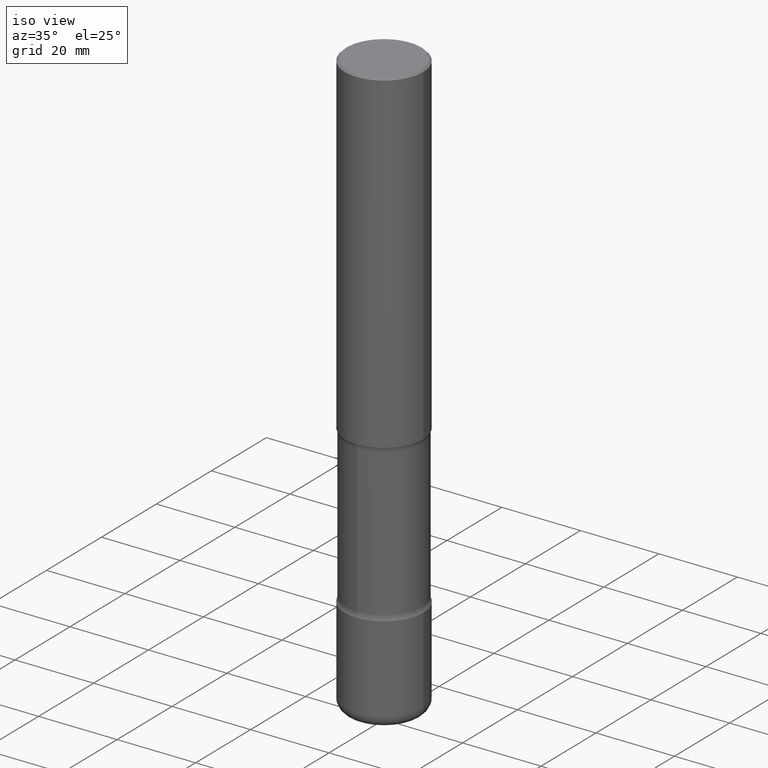
[diagram: clean part render]
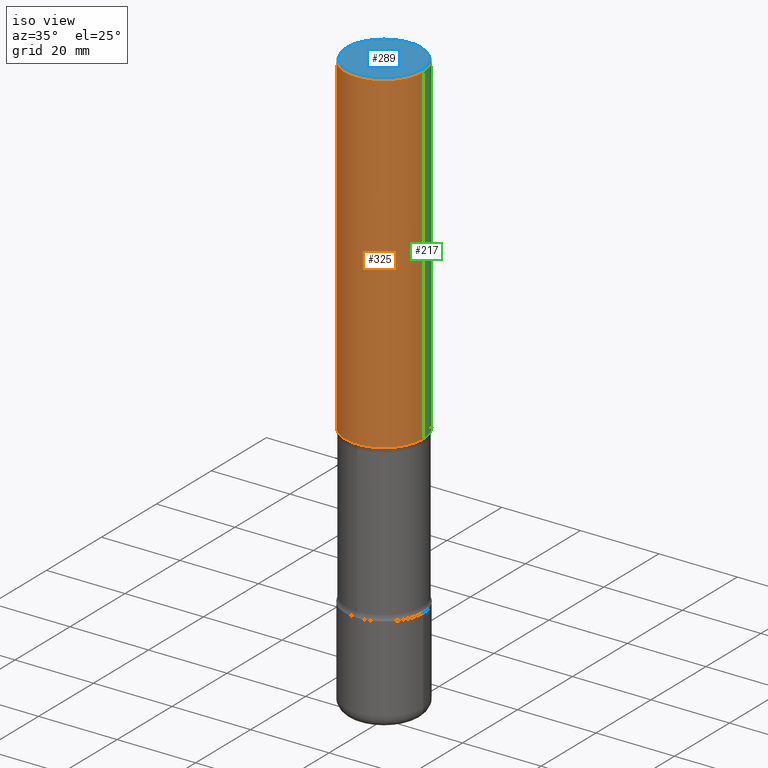
[diagram: same view with three faces highlighted in distinct colors, each labeled with its STEP entity id]
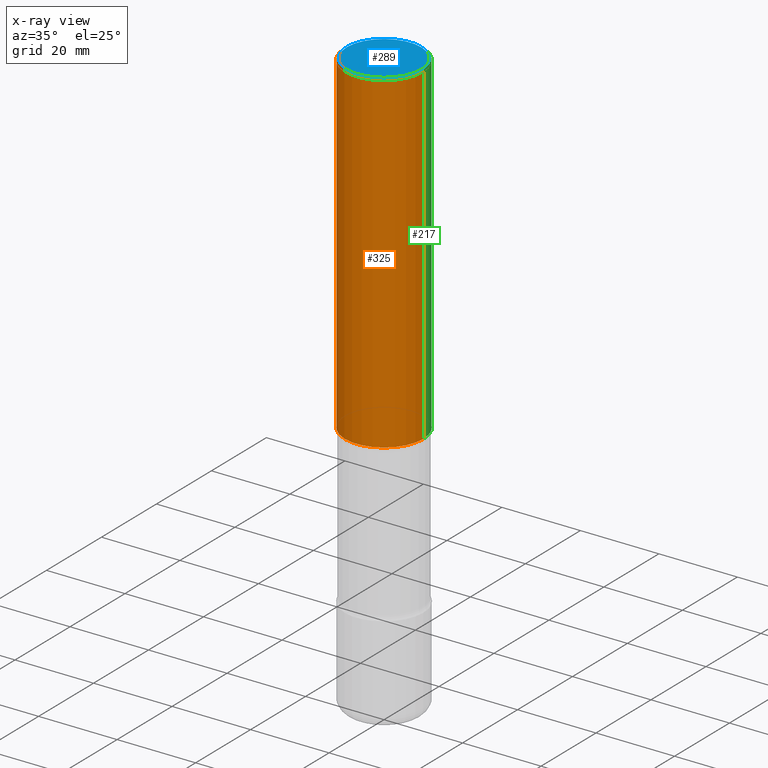
[diagram: x-ray of the same camera — body ghosted, the three highlighted faces saturated]
A machine part, iso view with three faces highlighted in distinct colors.
The next image is the same camera in x-ray (body ghosted, the three faces saturated) — at least one of them is partly hidden behind the body in this view.
Their STEP definitions:

[orange] entity #325 — the highlighted cylindrical surface (partial cylindrical patch) has radius 10 mm, axis along (-0, 0, 1).
#1 = DIRECTION ( 'NONE',  ( -2.445468806185136597E-29, 3.491481338843145583E-15, 1.000000000000000000 ) ) ;
#6 = ORIENTED_EDGE ( 'NONE', *, *, #450, .F. ) ;
#47 = FACE_OUTER_BOUND ( 'NONE', #140, .T. ) ;
#51 = LINE ( 'NONE', #226, #404 ) ;
#58 = AXIS2_PLACEMENT_3D ( 'NONE', #383, #1, #431 ) ;
#60 = EDGE_CURVE ( 'NONE', #543, #301, #268, .T. ) ;
#72 = AXIS2_PLACEMENT_3D ( 'NONE', #348, #397, #316 ) ;
#125 = VERTEX_POINT ( 'NONE', #131 ) ;
#131 = CARTESIAN_POINT ( 'NONE',  ( -0.3936999999999998279, 2.679362779428218735E-15, -0.02000000000000008715 ) ) ;
#139 = EDGE_CURVE ( 'NONE', #446, #543, #200, .T. ) ;
#140 = EDGE_LOOP ( 'NONE', ( #542, #529, #355, #6 ) ) ;
#145 = CIRCLE ( 'NONE', #451, 0.3936999999999998279 ) ;
#168 = CARTESIAN_POINT ( 'NONE',  ( 0.3937000000000002164, -1.443308555850978615E-14, -3.346399999999999597 ) ) ;
#172 = DIRECTION ( 'NONE',  ( 1.000000000000000000, -6.982962677686266711E-15, 0.000000000000000000 ) ) ;
#200 = CIRCLE ( 'NONE', #72, 0.3937000000000002164 ) ;
#206 = DIRECTION ( 'NONE',  ( -2.445468806185136877E-29, 3.491481338843145188E-15, 1.000000000000000000 ) ) ;
#212 = CYLINDRICAL_SURFACE ( 'NONE', #58, 0.3937000000000000499 ) ;
#226 = CARTESIAN_POINT ( 'NONE',  ( -0.3937000000000000499, 2.797406750687514786E-15, -1.936584745033356735E-29 ) ) ;
#252 = CARTESIAN_POINT ( 'NONE',  ( 4.890937612370294178E-31, -6.982962677686321191E-17, -0.02000000000000008715 ) ) ;
#264 = DIRECTION ( 'NONE',  ( -2.445468806185136597E-29, 3.491481338843145583E-15, 1.000000000000000000 ) ) ;
#268 = LINE ( 'NONE', #304, #398 ) ;
#301 = VERTEX_POINT ( 'NONE', #481 ) ;
#304 = CARTESIAN_POINT ( 'NONE',  ( 0.3937000000000000499, -2.749192406205083217E-15, 1.919750796630860172E-29 ) ) ;
#316 = DIRECTION ( 'NONE',  ( 1.000000000000000000, -6.982962677686269866E-15, 0.000000000000000000 ) ) ;
#325 = ADVANCED_FACE ( 'NONE', ( #47 ), #212, .T. ) ;
#348 = CARTESIAN_POINT ( 'NONE',  ( 8.183516813017940998E-29, -1.168389315230470136E-14, -3.346399999999999597 ) ) ;
#355 = ORIENTED_EDGE ( 'NONE', *, *, #60, .T. ) ;
#383 = CARTESIAN_POINT ( 'NONE',  ( 0.000000000000000000, 0.000000000000000000, 0.000000000000000000 ) ) ;
#389 = DIRECTION ( 'NONE',  ( -2.445468806185136877E-29, 3.491481338843145188E-15, 1.000000000000000000 ) ) ;
#394 = EDGE_CURVE ( 'NONE', #446, #125, #51, .T. ) ;
#397 = DIRECTION ( 'NONE',  ( -2.445468806185136597E-29, 3.491481338843145583E-15, 1.000000000000000000 ) ) ;
#398 = VECTOR ( 'NONE', #389, 39.37007874015748143 ) ;
#404 = VECTOR ( 'NONE', #206, 39.37007874015748143 ) ;
#431 = DIRECTION ( 'NONE',  ( 1.000000000000000000, -6.982962677686265922E-15, 4.876176775795935793E-29 ) ) ;
#446 = VERTEX_POINT ( 'NONE', #464 ) ;
#450 = EDGE_CURVE ( 'NONE', #125, #301, #145, .T. ) ;
#451 = AXIS2_PLACEMENT_3D ( 'NONE', #252, #264, #172 ) ;
#464 = CARTESIAN_POINT ( 'NONE',  ( -0.3937000000000002164, -3.079454638853263992E-15, -3.346399999999999597 ) ) ;
#481 = CARTESIAN_POINT ( 'NONE',  ( 0.3936999999999998279, -2.770807688499514156E-15, -0.02000000000000008715 ) ) ;
#529 = ORIENTED_EDGE ( 'NONE', *, *, #139, .T. ) ;
#542 = ORIENTED_EDGE ( 'NONE', *, *, #394, .F. ) ;
#543 = VERTEX_POINT ( 'NONE', #168 ) ;

[blue] entity #289 — the highlighted planar face has unit normal (0, -0, -1).
#43 = CARTESIAN_POINT ( 'NONE',  ( -2.087702828670439639E-46, 2.980686340760894400E-32, 8.537024980200822558E-18 ) ) ;
#94 = DIRECTION ( 'NONE',  ( -1.000000000000000000, 6.982962677686265922E-15, -4.876176775795935793E-29 ) ) ;
#102 = CARTESIAN_POINT ( 'NONE',  ( -0.3736999999999998101, 2.644447966039787875E-15, 8.537024980182450727E-18 ) ) ;
#111 = AXIS2_PLACEMENT_3D ( 'NONE', #262, #141, #315 ) ;
#129 = FACE_OUTER_BOUND ( 'NONE', #225, .T. ) ;
#141 = DIRECTION ( 'NONE',  ( -2.445468806185136597E-29, 3.491481338843145583E-15, 1.000000000000000000 ) ) ;
#143 = ORIENTED_EDGE ( 'NONE', *, *, #372, .T. ) ;
#152 = VERTEX_POINT ( 'NONE', #102 ) ;
#155 = CIRCLE ( 'NONE', #111, 0.3736999999999998101 ) ;
#183 = DIRECTION ( 'NONE',  ( 1.000000000000000000, -6.982962677686266711E-15, 4.876212485538977921E-29 ) ) ;
#223 = DIRECTION ( 'NONE',  ( -2.445468806185136597E-29, 3.491481338843145583E-15, 1.000000000000000000 ) ) ;
#225 = EDGE_LOOP ( 'NONE', ( #143, #230 ) ) ;
#230 = ORIENTED_EDGE ( 'NONE', *, *, #392, .T. ) ;
#262 = CARTESIAN_POINT ( 'NONE',  ( -2.087702828670439639E-46, 2.980686340760894400E-32, 8.537024980200822558E-18 ) ) ;
#289 = ADVANCED_FACE ( 'NONE', ( #129 ), #351, .F. ) ;
#315 = DIRECTION ( 'NONE',  ( 1.000000000000000000, -6.982962677686266711E-15, 4.876212485538977921E-29 ) ) ;
#351 = PLANE ( 'NONE',  #390 ) ;
#364 = CIRCLE ( 'NONE', #471, 0.3736999999999998101 ) ;
#372 = EDGE_CURVE ( 'NONE', #152, #537, #155, .T. ) ;
#390 = AXIS2_PLACEMENT_3D ( 'NONE', #391, #473, #94 ) ;
#391 = CARTESIAN_POINT ( 'NONE',  ( 2.609533152651356226E-15, 0.3736999999999998101, -1.300498063835582617E-15 ) ) ;
#392 = EDGE_CURVE ( 'NONE', #537, #152, #364, .T. ) ;
#471 = AXIS2_PLACEMENT_3D ( 'NONE', #43, #223, #183 ) ;
#473 = DIRECTION ( 'NONE',  ( 2.438088387897960049E-29, -3.491481338843145188E-15, -1.000000000000000000 ) ) ;
#512 = CARTESIAN_POINT ( 'NONE',  ( 0.3736999999999998101, -2.667287895133366781E-15, 8.537024980219274507E-18 ) ) ;
#537 = VERTEX_POINT ( 'NONE', #512 ) ;

[green] entity #217 — the highlighted cylindrical surface (partial cylindrical patch) has radius 10 mm, axis along (-0, 0, 1).
#9 = CIRCLE ( 'NONE', #17, 0.3937000000000002164 ) ;
#17 = AXIS2_PLACEMENT_3D ( 'NONE', #302, #83, #170 ) ;
#34 = ORIENTED_EDGE ( 'NONE', *, *, #60, .F. ) ;
#48 = CIRCLE ( 'NONE', #177, 0.3936999999999998279 ) ;
#51 = LINE ( 'NONE', #226, #404 ) ;
#52 = DIRECTION ( 'NONE',  ( -2.445468806185136597E-29, 3.491481338843145583E-15, 1.000000000000000000 ) ) ;
#60 = EDGE_CURVE ( 'NONE', #543, #301, #268, .T. ) ;
#83 = DIRECTION ( 'NONE',  ( -2.445468806185136597E-29, 3.491481338843145583E-15, 1.000000000000000000 ) ) ;
#125 = VERTEX_POINT ( 'NONE', #131 ) ;
#131 = CARTESIAN_POINT ( 'NONE',  ( -0.3936999999999998279, 2.679362779428218735E-15, -0.02000000000000008715 ) ) ;
#146 = DIRECTION ( 'NONE',  ( -2.445468806185136597E-29, 3.491481338843145583E-15, 1.000000000000000000 ) ) ;
#156 = EDGE_LOOP ( 'NONE', ( #290, #367, #498, #34 ) ) ;
#168 = CARTESIAN_POINT ( 'NONE',  ( 0.3937000000000002164, -1.443308555850978615E-14, -3.346399999999999597 ) ) ;
#170 = DIRECTION ( 'NONE',  ( 1.000000000000000000, -6.982962677686269866E-15, 0.000000000000000000 ) ) ;
#177 = AXIS2_PLACEMENT_3D ( 'NONE', #271, #52, #388 ) ;
#181 = CYLINDRICAL_SURFACE ( 'NONE', #491, 0.3937000000000000499 ) ;
#185 = FACE_OUTER_BOUND ( 'NONE', #156, .T. ) ;
#196 = EDGE_CURVE ( 'NONE', #301, #125, #48, .T. ) ;
#206 = DIRECTION ( 'NONE',  ( -2.445468806185136877E-29, 3.491481338843145188E-15, 1.000000000000000000 ) ) ;
#217 = ADVANCED_FACE ( 'NONE', ( #185 ), #181, .T. ) ;
#226 = CARTESIAN_POINT ( 'NONE',  ( -0.3937000000000000499, 2.797406750687514786E-15, -1.936584745033356735E-29 ) ) ;
#268 = LINE ( 'NONE', #304, #398 ) ;
#271 = CARTESIAN_POINT ( 'NONE',  ( 4.890937612370294178E-31, -6.982962677686321191E-17, -0.02000000000000008715 ) ) ;
#290 = ORIENTED_EDGE ( 'NONE', *, *, #296, .T. ) ;
#296 = EDGE_CURVE ( 'NONE', #543, #446, #9, .T. ) ;
#301 = VERTEX_POINT ( 'NONE', #481 ) ;
#302 = CARTESIAN_POINT ( 'NONE',  ( 8.183516813017940998E-29, -1.168389315230470136E-14, -3.346399999999999597 ) ) ;
#304 = CARTESIAN_POINT ( 'NONE',  ( 0.3937000000000000499, -2.749192406205083217E-15, 1.919750796630860172E-29 ) ) ;
#352 = DIRECTION ( 'NONE',  ( 1.000000000000000000, -6.982962677686265922E-15, 4.876176775795935793E-29 ) ) ;
#367 = ORIENTED_EDGE ( 'NONE', *, *, #394, .T. ) ;
#388 = DIRECTION ( 'NONE',  ( 1.000000000000000000, -6.982962677686266711E-15, 0.000000000000000000 ) ) ;
#389 = DIRECTION ( 'NONE',  ( -2.445468806185136877E-29, 3.491481338843145188E-15, 1.000000000000000000 ) ) ;
#394 = EDGE_CURVE ( 'NONE', #446, #125, #51, .T. ) ;
#398 = VECTOR ( 'NONE', #389, 39.37007874015748143 ) ;
#404 = VECTOR ( 'NONE', #206, 39.37007874015748143 ) ;
#446 = VERTEX_POINT ( 'NONE', #464 ) ;
#464 = CARTESIAN_POINT ( 'NONE',  ( -0.3937000000000002164, -3.079454638853263992E-15, -3.346399999999999597 ) ) ;
#481 = CARTESIAN_POINT ( 'NONE',  ( 0.3936999999999998279, -2.770807688499514156E-15, -0.02000000000000008715 ) ) ;
#491 = AXIS2_PLACEMENT_3D ( 'NONE', #525, #146, #352 ) ;
#498 = ORIENTED_EDGE ( 'NONE', *, *, #196, .F. ) ;
#525 = CARTESIAN_POINT ( 'NONE',  ( 0.000000000000000000, 0.000000000000000000, 0.000000000000000000 ) ) ;
#543 = VERTEX_POINT ( 'NONE', #168 ) ;